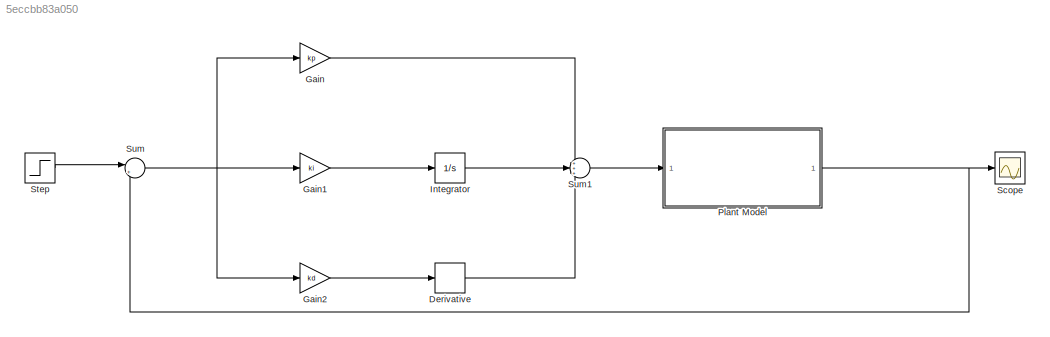
MODEL slx_5eccbb83a050
KIND model
CONFIG AbsTol = auto
CONFIG EnableMultiTasking = off
CONFIG FixedStep = auto
CONFIG MaxStep = auto
CONFIG MinStep = auto
CONFIG RelTol = 1e-3
CONFIG SampleTimeConstraint = Unconstrained
CONFIG Solver = VariableStepAuto
CONFIG SolverName = VariableStepAuto
CONFIG StartTime = 0.0
CONFIG StopTime = 10.0
BLOCK [Derivative] Derivative
BLOCK [Gain] Gain
  Gain = kp
BLOCK [Gain] Gain1
  Gain = ki
BLOCK [Gain] Gain2
  Gain = kd
BLOCK [Integrator] Integrator
  Ports = [1, 1]
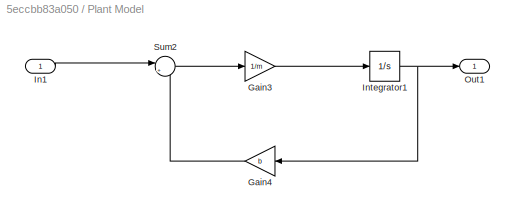
BLOCK [SubSystem] Plant Model
  Ports = [1, 1]
  RequestExecContextInheritance = off
BLOCK [Gain] Plant Model/Gain3
  Gain = 1/m
BLOCK [Gain] Plant Model/Gain4
  Gain = b
BLOCK [Inport] Plant Model/In1
BLOCK [Integrator] Plant Model/Integrator1
  Ports = [1, 1]
BLOCK [Outport] Plant Model/Out1
BLOCK [Sum] Plant Model/Sum2
  Inputs = |+-
  Ports = [2, 1]
BLOCK [Scope] Scope
  Floating = off
  NumInputPorts = 1
  Ports = [1]
  ScopeSpecificationString = Simulink.scopes.TimeScopeBlockCfg('CurrentConfiguration', extmgr.ConfigurationSet(extmgr.Configuration('Core','General UI',true),extmgr.Configuration('Core','Source UI',true),extmgr.Configuration('Sources','WiredSimulink',true),extmgr.Configuration('Visuals','Time Domain',true,'SerializedDisplays',{struct('MinYLimReal','-85.87128','MaxYLimReal','772.84155','YLabelReal','','MinYLimMag','0.00000','M...<+1370ch>
BLOCK [Step] Step
  After = u
  SampleTime = 0
  Time = 0
BLOCK [Sum] Sum
  Inputs = |+-
  Ports = [2, 1]
BLOCK [Sum] Sum1
  Inputs = +++
  Ports = [3, 1]
LINE Derivative:1 -> Sum1:3
LINE Gain1:1 -> Integrator:1
LINE Gain2:1 -> Derivative:1
LINE Gain:1 -> Sum1:1
LINE Integrator:1 -> Sum1:2
LINE Plant Model/Gain3:1 -> Plant Model/Integrator1:1
LINE Plant Model/Gain4:1 -> Plant Model/Sum2:2
LINE Plant Model/In1:1 -> Plant Model/Sum2:1
NET Plant Model/Integrator1:1 -> Plant Model/Gain4:1, Plant Model/Out1:1
LINE Plant Model/Sum2:1 -> Plant Model/Gain3:1
NET Plant Model:1 -> Scope:1, Sum:2
LINE Step:1 -> Sum:1
LINE Sum1:1 -> Plant Model:1
NET Sum:1 -> Gain1:1, Gain2:1, Gain:1
note: NET lines group one-source signal fan-out (src -> all destinations, sorted); 1:1 wires keep LINE
